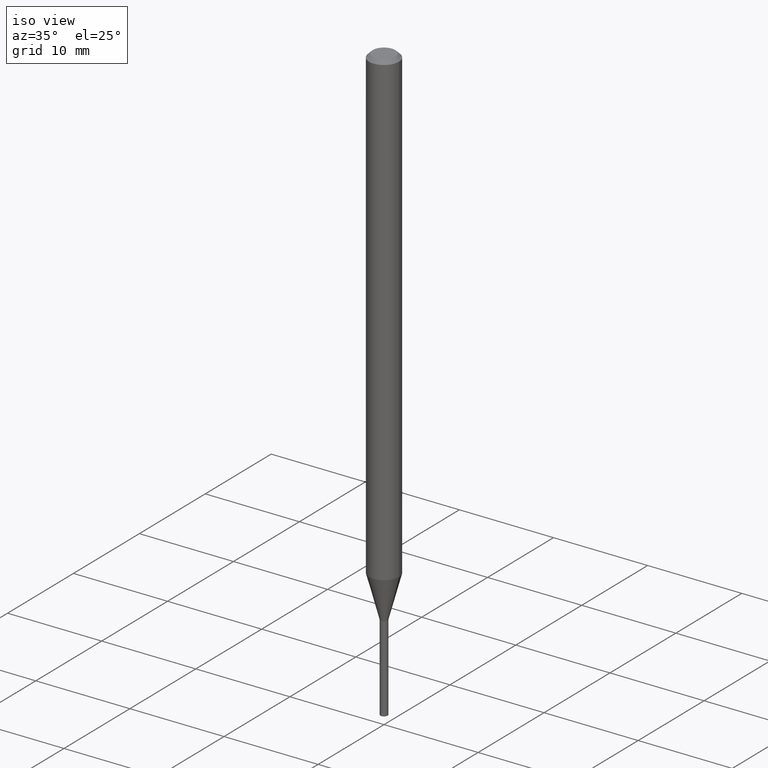
[diagram: clean part render]
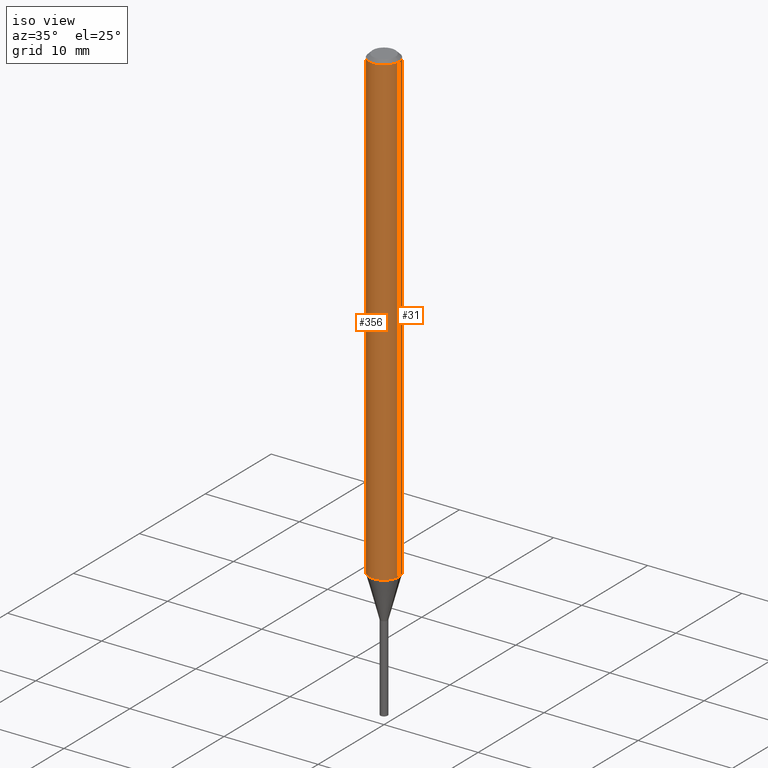
[diagram: same view with one multi-face feature highlighted, each face labeled with its STEP entity id]
A machine part, iso view. The highlighted faces form ONE feature: a constant-radius fillet chain: 2 tangent blend faces with common blend radius 1.5875 mm. The faces share edges in the B-rep.
Their STEP definitions:
[1] entity #356 (Cylinder):
#7 = LINE ( 'NONE', #256, #43 ) ;
#35 = AXIS2_PLACEMENT_3D ( 'NONE', #341, #156, #238 ) ;
#43 = VECTOR ( 'NONE', #365, 39.37007874015748143 ) ;
#64 = CARTESIAN_POINT ( 'NONE',  ( 3.668203209277705088E-31, -5.237222008264718399E-17, -0.01499999999999999944 ) ) ;
#93 = ORIENTED_EDGE ( 'NONE', *, *, #408, .F. ) ;
#106 = CARTESIAN_POINT ( 'NONE',  ( -0.06250000000000000000, -3.008510271185196458E-15, -0.01499999999999999944 ) ) ;
#118 = CIRCLE ( 'NONE', #393, 0.06250000000000000000 ) ;
#126 = EDGE_CURVE ( 'NONE', #461, #165, #246, .T. ) ;
#132 = ORIENTED_EDGE ( 'NONE', *, *, #126, .T. ) ;
#136 = CARTESIAN_POINT ( 'NONE',  ( -0.06250000000000000000, -6.408737532137808059E-15, -1.962727586640477417 ) ) ;
#154 = VERTEX_POINT ( 'NONE', #136 ) ;
#156 = DIRECTION ( 'NONE',  ( -2.445468806185136597E-29, 3.491481338843145583E-15, 1.000000000000000000 ) ) ;
#165 = VERTEX_POINT ( 'NONE', #326 ) ;
#178 = DIRECTION ( 'NONE',  ( -2.445468806185136877E-29, 3.491481338843145188E-15, 1.000000000000000000 ) ) ;
#209 = CARTESIAN_POINT ( 'NONE',  ( 0.06250000000000000000, -7.289261909343262345E-15, -1.962727586640477417 ) ) ;
#214 = AXIS2_PLACEMENT_3D ( 'NONE', #64, #215, #363 ) ;
#215 = DIRECTION ( 'NONE',  ( -2.445468806185136597E-29, 3.491481338843145583E-15, 1.000000000000000000 ) ) ;
#224 = ORIENTED_EDGE ( 'NONE', *, *, #398, .T. ) ;
#238 = DIRECTION ( 'NONE',  ( 1.000000000000000000, -6.982962677686266711E-15, 4.876176775795935793E-29 ) ) ;
#241 = VERTEX_POINT ( 'NONE', #106 ) ;
#245 = CIRCLE ( 'NONE', #214, 0.06250000000000000000 ) ;
#246 = LINE ( 'NONE', #358, #427 ) ;
#251 = DIRECTION ( 'NONE',  ( -2.445468806185136597E-29, 3.491481338843145583E-15, 1.000000000000000000 ) ) ;
#256 = CARTESIAN_POINT ( 'NONE',  ( -0.06250000000000000000, 4.440892098500626162E-16, -3.074334431409316114E-30 ) ) ;
#275 = CYLINDRICAL_SURFACE ( 'NONE', #35, 0.06250000000000000000 ) ;
#291 = ORIENTED_EDGE ( 'NONE', *, *, #460, .F. ) ;
#326 = CARTESIAN_POINT ( 'NONE',  ( 0.06250000000000000000, -4.888073874380388472E-16, -0.01499999999999999944 ) ) ;
#341 = CARTESIAN_POINT ( 'NONE',  ( 0.000000000000000000, 0.000000000000000000, 0.000000000000000000 ) ) ;
#356 = ADVANCED_FACE ( 'NONE', ( #457 ), #275, .T. ) ;
#357 = CARTESIAN_POINT ( 'NONE',  ( 4.799789088168322690E-29, -6.852826741987870675E-15, -1.962727586640477417 ) ) ;
#358 = CARTESIAN_POINT ( 'NONE',  ( 0.06250000000000000000, -4.364351673553916694E-16, 3.047610484872459871E-30 ) ) ;
#363 = DIRECTION ( 'NONE',  ( 1.000000000000000000, -6.982962677686266711E-15, 0.000000000000000000 ) ) ;
#365 = DIRECTION ( 'NONE',  ( -2.445468806185136877E-29, 3.491481338843145188E-15, 1.000000000000000000 ) ) ;
#393 = AXIS2_PLACEMENT_3D ( 'NONE', #357, #251, #439 ) ;
#398 = EDGE_CURVE ( 'NONE', #154, #461, #118, .T. ) ;
#407 = EDGE_LOOP ( 'NONE', ( #291, #224, #132, #93 ) ) ;
#408 = EDGE_CURVE ( 'NONE', #241, #165, #245, .T. ) ;
#427 = VECTOR ( 'NONE', #178, 39.37007874015748143 ) ;
#439 = DIRECTION ( 'NONE',  ( 1.000000000000000000, -6.982962677686262766E-15, 0.000000000000000000 ) ) ;
#457 = FACE_OUTER_BOUND ( 'NONE', #407, .T. ) ;
#460 = EDGE_CURVE ( 'NONE', #154, #241, #7, .T. ) ;
#461 = VERTEX_POINT ( 'NONE', #209 ) ;
[2] entity #31 (Cylinder):
#1 = DIRECTION ( 'NONE',  ( 1.000000000000000000, -6.982962677686266711E-15, 0.000000000000000000 ) ) ;
#7 = LINE ( 'NONE', #256, #43 ) ;
#19 = DIRECTION ( 'NONE',  ( 1.000000000000000000, -6.982962677686266711E-15, 4.876176775795935793E-29 ) ) ;
#31 = ADVANCED_FACE ( 'NONE', ( #197 ), #113, .T. ) ;
#43 = VECTOR ( 'NONE', #365, 39.37007874015748143 ) ;
#60 = ORIENTED_EDGE ( 'NONE', *, *, #417, .F. ) ;
#95 = ORIENTED_EDGE ( 'NONE', *, *, #460, .T. ) ;
#106 = CARTESIAN_POINT ( 'NONE',  ( -0.06250000000000000000, -3.008510271185196458E-15, -0.01499999999999999944 ) ) ;
#111 = CARTESIAN_POINT ( 'NONE',  ( 3.668203209277705088E-31, -5.237222008264718399E-17, -0.01499999999999999944 ) ) ;
#113 = CYLINDRICAL_SURFACE ( 'NONE', #431, 0.06250000000000000000 ) ;
#126 = EDGE_CURVE ( 'NONE', #461, #165, #246, .T. ) ;
#129 = ORIENTED_EDGE ( 'NONE', *, *, #126, .F. ) ;
#130 = DIRECTION ( 'NONE',  ( -2.445468806185136597E-29, 3.491481338843145583E-15, 1.000000000000000000 ) ) ;
#134 = AXIS2_PLACEMENT_3D ( 'NONE', #462, #130, #278 ) ;
#136 = CARTESIAN_POINT ( 'NONE',  ( -0.06250000000000000000, -6.408737532137808059E-15, -1.962727586640477417 ) ) ;
#154 = VERTEX_POINT ( 'NONE', #136 ) ;
#165 = VERTEX_POINT ( 'NONE', #326 ) ;
#178 = DIRECTION ( 'NONE',  ( -2.445468806185136877E-29, 3.491481338843145188E-15, 1.000000000000000000 ) ) ;
#197 = FACE_OUTER_BOUND ( 'NONE', #204, .T. ) ;
#204 = EDGE_LOOP ( 'NONE', ( #348, #95, #60, #129 ) ) ;
#209 = CARTESIAN_POINT ( 'NONE',  ( 0.06250000000000000000, -7.289261909343262345E-15, -1.962727586640477417 ) ) ;
#225 = DIRECTION ( 'NONE',  ( -2.445468806185136597E-29, 3.491481338843145583E-15, 1.000000000000000000 ) ) ;
#241 = VERTEX_POINT ( 'NONE', #106 ) ;
#246 = LINE ( 'NONE', #358, #427 ) ;
#250 = CIRCLE ( 'NONE', #437, 0.06250000000000000000 ) ;
#256 = CARTESIAN_POINT ( 'NONE',  ( -0.06250000000000000000, 4.440892098500626162E-16, -3.074334431409316114E-30 ) ) ;
#258 = DIRECTION ( 'NONE',  ( -2.445468806185136597E-29, 3.491481338843145583E-15, 1.000000000000000000 ) ) ;
#278 = DIRECTION ( 'NONE',  ( 1.000000000000000000, -6.982962677686262766E-15, 0.000000000000000000 ) ) ;
#325 = EDGE_CURVE ( 'NONE', #461, #154, #428, .T. ) ;
#326 = CARTESIAN_POINT ( 'NONE',  ( 0.06250000000000000000, -4.888073874380388472E-16, -0.01499999999999999944 ) ) ;
#348 = ORIENTED_EDGE ( 'NONE', *, *, #325, .T. ) ;
#358 = CARTESIAN_POINT ( 'NONE',  ( 0.06250000000000000000, -4.364351673553916694E-16, 3.047610484872459871E-30 ) ) ;
#365 = DIRECTION ( 'NONE',  ( -2.445468806185136877E-29, 3.491481338843145188E-15, 1.000000000000000000 ) ) ;
#417 = EDGE_CURVE ( 'NONE', #165, #241, #250, .T. ) ;
#427 = VECTOR ( 'NONE', #178, 39.37007874015748143 ) ;
#428 = CIRCLE ( 'NONE', #134, 0.06250000000000000000 ) ;
#431 = AXIS2_PLACEMENT_3D ( 'NONE', #438, #225, #19 ) ;
#437 = AXIS2_PLACEMENT_3D ( 'NONE', #111, #258, #1 ) ;
#438 = CARTESIAN_POINT ( 'NONE',  ( 0.000000000000000000, 0.000000000000000000, 0.000000000000000000 ) ) ;
#460 = EDGE_CURVE ( 'NONE', #154, #241, #7, .T. ) ;
#461 = VERTEX_POINT ( 'NONE', #209 ) ;
#462 = CARTESIAN_POINT ( 'NONE',  ( 4.799789088168322690E-29, -6.852826741987870675E-15, -1.962727586640477417 ) ) ;